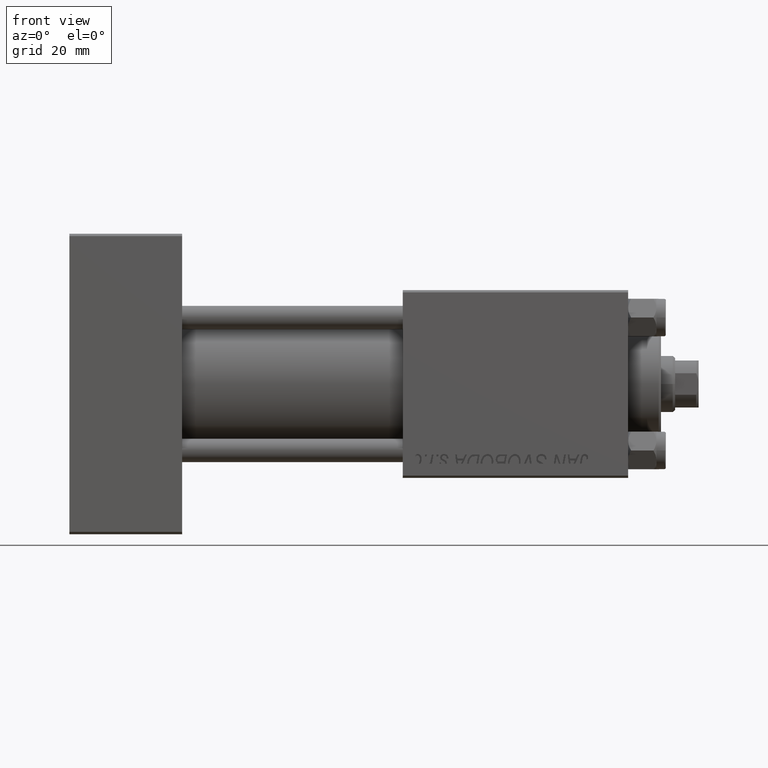
[diagram: clean part render]
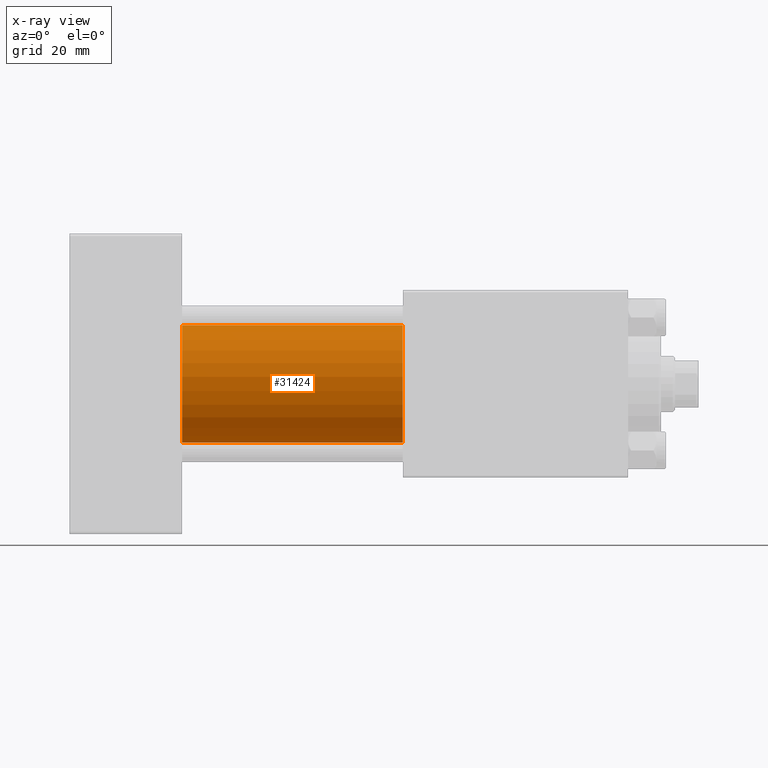
[diagram: x-ray — body ghosted, one internal face saturated and labeled with its STEP entity id]
A machine part, front view, then the same camera in x-ray: the body is ghosted and one INTERNAL B-rep face — a face not visible from any outside direction — is saturated and labeled: STEP entity #31424.
In plain terms, the highlighted cylindrical surface (partial cylindrical patch) has radius 12.5 mm, axis along (-1, -0, -0).
Its self-contained STEP definition (entity closure, byte-faithful):
#1077 = DIRECTION ( 'NONE',  ( 1.000000000000000000, 0.000000000000000000, 0.000000000000000000 ) ) ;
#2894 = VECTOR ( 'NONE', #21087, 1000.000000000000000 ) ;
#3259 = CYLINDRICAL_SURFACE ( 'NONE', #35959, 12.49999999999999645 ) ;
#3513 = FACE_OUTER_BOUND ( 'NONE', #51668, .T. ) ;
#4443 = AXIS2_PLACEMENT_3D ( 'NONE', #32818, #1077, #12627 ) ;
#6472 = VERTEX_POINT ( 'NONE', #27691 ) ;
#6969 = AXIS2_PLACEMENT_3D ( 'NONE', #49101, #41198, #20743 ) ;
#11274 = CIRCLE ( 'NONE', #4443, 12.49999999999999645 ) ;
#11397 = CARTESIAN_POINT ( 'NONE',  ( 71.00000000000001421, -2.602085213965210642E-15, 0.000000000000000000 ) ) ;
#12627 = DIRECTION ( 'NONE',  ( 0.000000000000000000, 0.000000000000000000, -1.000000000000000000 ) ) ;
#12768 = CARTESIAN_POINT ( 'NONE',  ( 24.00000000000000000, -2.602085213965210642E-15, 12.49999999999999645 ) ) ;
#16728 = VERTEX_POINT ( 'NONE', #12768 ) ;
#17394 = LINE ( 'NONE', #37850, #2894 ) ;
#18058 = EDGE_CURVE ( 'NONE', #23958, #16728, #17394, .T. ) ;
#20743 = DIRECTION ( 'NONE',  ( 0.000000000000000000, 0.000000000000000000, -1.000000000000000000 ) ) ;
#21087 = DIRECTION ( 'NONE',  ( -1.000000000000000000, -0.000000000000000000, -0.000000000000000000 ) ) ;
#22892 = CIRCLE ( 'NONE', #6969, 12.49999999999999645 ) ;
#23958 = VERTEX_POINT ( 'NONE', #42983 ) ;
#27691 = CARTESIAN_POINT ( 'NONE',  ( 24.00000000000000000, -1.071276715031019515E-15, -12.49999999999999645 ) ) ;
#31424 = ADVANCED_FACE ( 'NONE', ( #3513 ), #3259, .F. ) ;
#31574 = EDGE_CURVE ( 'NONE', #38844, #6472, #51216, .T. ) ;
#32818 = CARTESIAN_POINT ( 'NONE',  ( 24.00000000000000000, -2.602085213965210642E-15, 0.000000000000000000 ) ) ;
#33948 = CARTESIAN_POINT ( 'NONE',  ( 71.00000000000001421, -1.071276715031019515E-15, -12.49999999999999645 ) ) ;
#35421 = CARTESIAN_POINT ( 'NONE',  ( 71.00000000000001421, -1.071276715031019515E-15, -12.49999999999999645 ) ) ;
#35853 = ORIENTED_EDGE ( 'NONE', *, *, #18058, .F. ) ;
#35959 = AXIS2_PLACEMENT_3D ( 'NONE', #11397, #51811, #47612 ) ;
#37850 = CARTESIAN_POINT ( 'NONE',  ( 71.00000000000001421, -2.602085213965210642E-15, 12.49999999999999645 ) ) ;
#37872 = ORIENTED_EDGE ( 'NONE', *, *, #40326, .T. ) ;
#38844 = VERTEX_POINT ( 'NONE', #33948 ) ;
#39111 = DIRECTION ( 'NONE',  ( -1.000000000000000000, -0.000000000000000000, -0.000000000000000000 ) ) ;
#39949 = ORIENTED_EDGE ( 'NONE', *, *, #43303, .F. ) ;
#40326 = EDGE_CURVE ( 'NONE', #23958, #38844, #22892, .T. ) ;
#40916 = ORIENTED_EDGE ( 'NONE', *, *, #31574, .T. ) ;
#41198 = DIRECTION ( 'NONE',  ( 1.000000000000000000, 0.000000000000000000, 0.000000000000000000 ) ) ;
#42983 = CARTESIAN_POINT ( 'NONE',  ( 71.00000000000001421, -2.602085213965210642E-15, 12.49999999999999645 ) ) ;
#43303 = EDGE_CURVE ( 'NONE', #16728, #6472, #11274, .T. ) ;
#46917 = VECTOR ( 'NONE', #39111, 1000.000000000000000 ) ;
#47612 = DIRECTION ( 'NONE',  ( 0.000000000000000000, 0.000000000000000000, 1.000000000000000000 ) ) ;
#49101 = CARTESIAN_POINT ( 'NONE',  ( 71.00000000000001421, -2.602085213965210642E-15, 0.000000000000000000 ) ) ;
#51216 = LINE ( 'NONE', #35421, #46917 ) ;
#51668 = EDGE_LOOP ( 'NONE', ( #37872, #40916, #39949, #35853 ) ) ;
#51811 = DIRECTION ( 'NONE',  ( -1.000000000000000000, -0.000000000000000000, -0.000000000000000000 ) ) ;